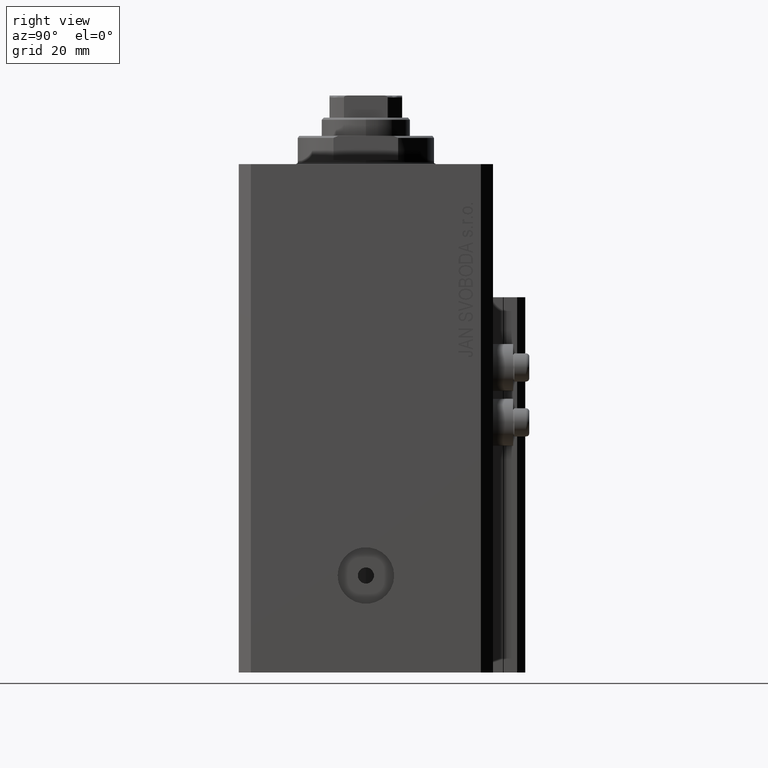
[diagram: clean part render]
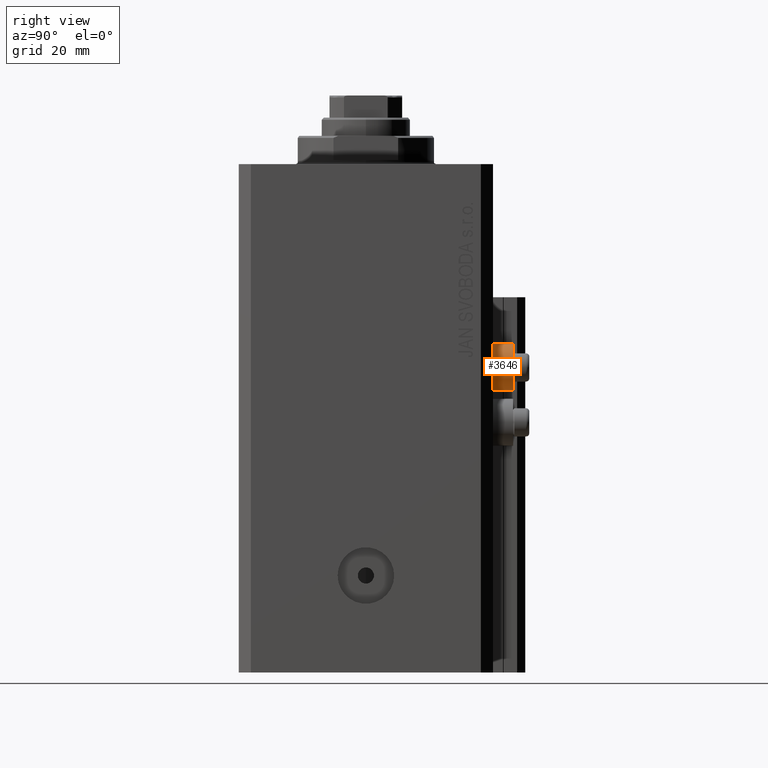
[diagram: same view with one face highlighted and labeled with its STEP entity id]
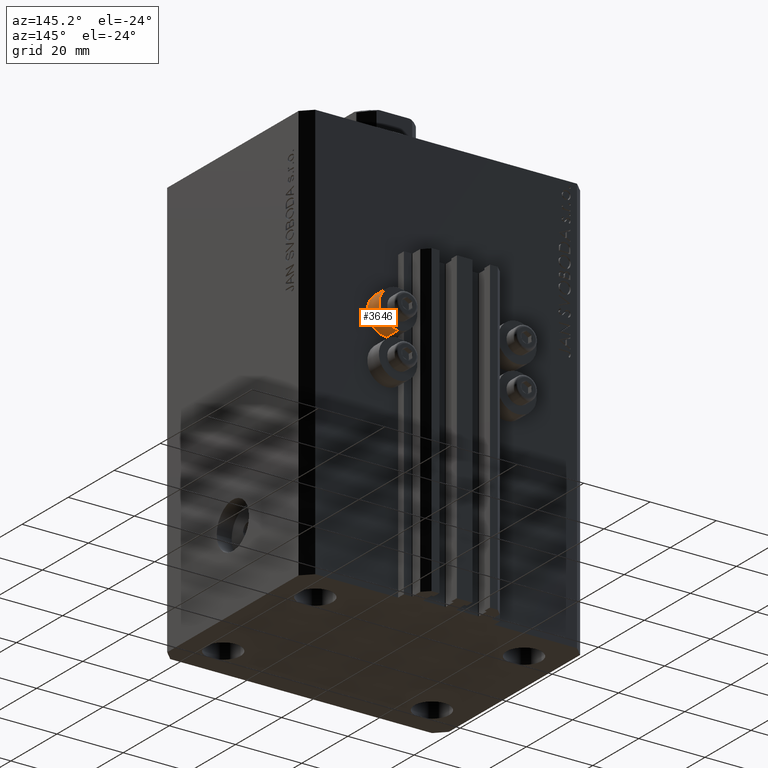
[diagram: same view with one face highlighted and labeled with its STEP entity id]
A machine part, right view. The second image highlights one B-rep face of the part: STEP entity #3646.
A second angle (auxiliary view) of the same face is appended — the face is thin or edge-on in the first view.
In plain terms, the highlighted cylindrical surface (edge-blend (fillet) strip) has radius 5.8 mm, axis along (0, 1, 0).
Its self-contained STEP definition (entity closure, byte-faithful):
#406 = CARTESIAN_POINT ( 'NONE',  ( 18.00000000000000355, 36.49999999996099831, -50.39999999999999858 ) ) ;
#434 = ORIENTED_EDGE ( 'NONE', *, *, #12362, .F. ) ;
#887 = CARTESIAN_POINT ( 'NONE',  ( 18.00000000000000355, 36.49999999996099831, -56.20000000000000284 ) ) ;
#3051 = CYLINDRICAL_SURFACE ( 'NONE', #17107, 5.799999999999999822 ) ;
#3480 = EDGE_CURVE ( 'NONE', #42088, #12782, #4887, .T. ) ;
#3646 = ADVANCED_FACE ( 'NONE', ( #25276 ), #3051, .T. ) ;
#4887 = CIRCLE ( 'NONE', #24694, 5.799999999999999822 ) ;
#5021 = CIRCLE ( 'NONE', #26389, 5.799999999999999822 ) ;
#8251 = CARTESIAN_POINT ( 'NONE',  ( 18.00000000000000355, 36.49999999996099120, -44.60000000000000142 ) ) ;
#9008 = VERTEX_POINT ( 'NONE', #15955 ) ;
#10008 = CARTESIAN_POINT ( 'NONE',  ( 18.00000000000000355, 36.49999999996099120, -50.39999999999999858 ) ) ;
#11794 = ORIENTED_EDGE ( 'NONE', *, *, #31478, .T. ) ;
#12362 = EDGE_CURVE ( 'NONE', #9008, #29140, #5021, .T. ) ;
#12782 = VERTEX_POINT ( 'NONE', #8251 ) ;
#12794 = CARTESIAN_POINT ( 'NONE',  ( 18.00000000000000355, 36.49999999996099831, -44.60000000000000142 ) ) ;
#13129 = DIRECTION ( 'NONE',  ( 0.000000000000000000, 0.000000000000000000, 1.000000000000000000 ) ) ;
#14051 = DIRECTION ( 'NONE',  ( 0.000000000000000000, 1.000000000000000000, 0.000000000000000000 ) ) ;
#15727 = LINE ( 'NONE', #887, #35585 ) ;
#15955 = CARTESIAN_POINT ( 'NONE',  ( 18.00000000000000355, 31.50000000000000000, -56.20000000000000284 ) ) ;
#17107 = AXIS2_PLACEMENT_3D ( 'NONE', #406, #14051, #43625 ) ;
#17177 = DIRECTION ( 'NONE',  ( -0.000000000000000000, -1.000000000000000000, -0.000000000000000000 ) ) ;
#24694 = AXIS2_PLACEMENT_3D ( 'NONE', #10008, #17177, #13129 ) ;
#25276 = FACE_OUTER_BOUND ( 'NONE', #35690, .T. ) ;
#25955 = CARTESIAN_POINT ( 'NONE',  ( 18.00000000000000355, 31.50000000000000000, -50.39999999999999858 ) ) ;
#26389 = AXIS2_PLACEMENT_3D ( 'NONE', #25955, #40501, #28597 ) ;
#28597 = DIRECTION ( 'NONE',  ( 0.000000000000000000, 0.000000000000000000, 1.000000000000000000 ) ) ;
#29140 = VERTEX_POINT ( 'NONE', #41358 ) ;
#30030 = DIRECTION ( 'NONE',  ( 0.000000000000000000, 1.000000000000000000, 0.000000000000000000 ) ) ;
#30558 = EDGE_CURVE ( 'NONE', #29140, #12782, #42104, .T. ) ;
#30935 = ORIENTED_EDGE ( 'NONE', *, *, #3480, .T. ) ;
#31478 = EDGE_CURVE ( 'NONE', #9008, #42088, #15727, .T. ) ;
#33587 = ORIENTED_EDGE ( 'NONE', *, *, #30558, .F. ) ;
#34252 = DIRECTION ( 'NONE',  ( 0.000000000000000000, 1.000000000000000000, 0.000000000000000000 ) ) ;
#35585 = VECTOR ( 'NONE', #30030, 1000.000000000000000 ) ;
#35690 = EDGE_LOOP ( 'NONE', ( #434, #11794, #30935, #33587 ) ) ;
#40501 = DIRECTION ( 'NONE',  ( -0.000000000000000000, -1.000000000000000000, -0.000000000000000000 ) ) ;
#41358 = CARTESIAN_POINT ( 'NONE',  ( 18.00000000000000355, 31.50000000000000000, -44.60000000000000142 ) ) ;
#42088 = VERTEX_POINT ( 'NONE', #43196 ) ;
#42104 = LINE ( 'NONE', #12794, #44809 ) ;
#43196 = CARTESIAN_POINT ( 'NONE',  ( 18.00000000000000355, 36.49999999996099120, -56.20000000000000284 ) ) ;
#43625 = DIRECTION ( 'NONE',  ( 0.000000000000000000, 0.000000000000000000, 1.000000000000000000 ) ) ;
#44809 = VECTOR ( 'NONE', #34252, 1000.000000000000000 ) ;